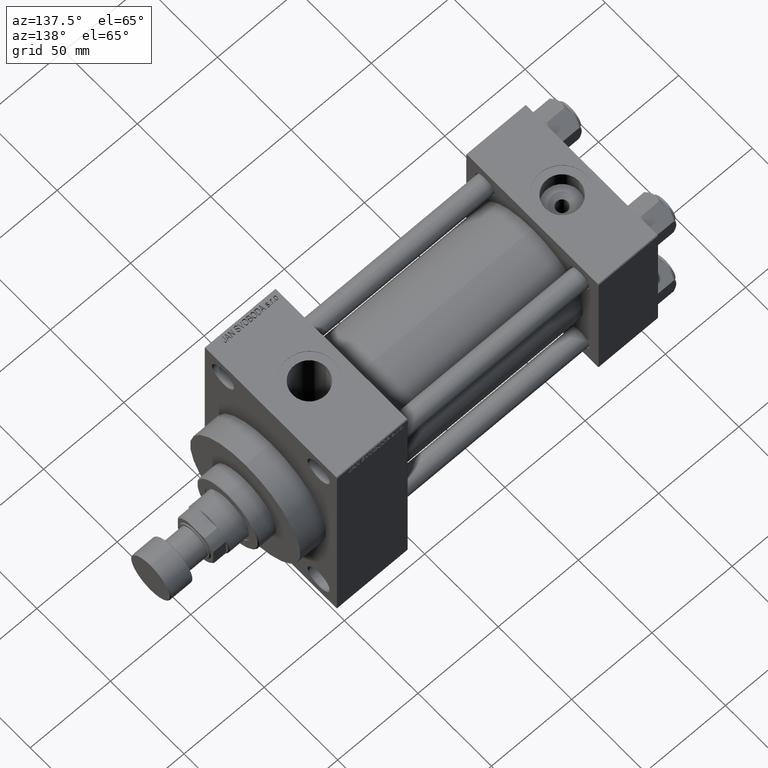
[diagram: clean part render]
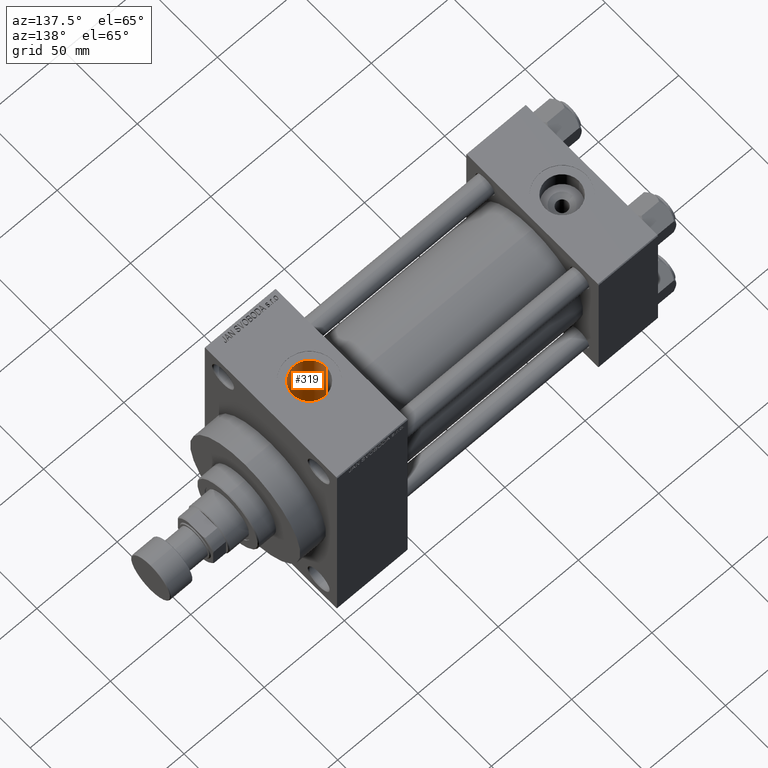
[diagram: same view with one face highlighted and labeled with its STEP entity id]
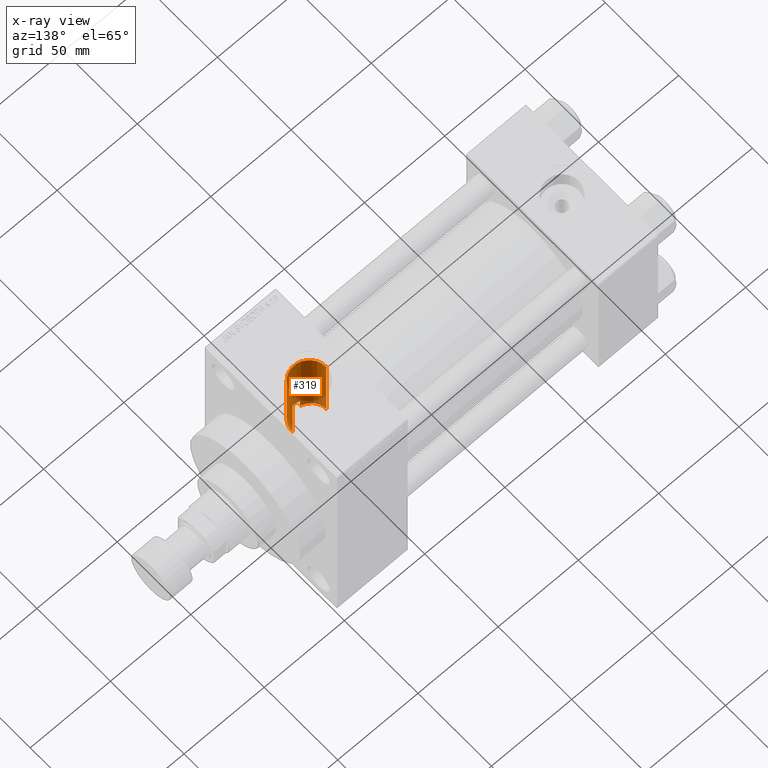
[diagram: x-ray of the same camera — body ghosted, the highlighted face saturated]
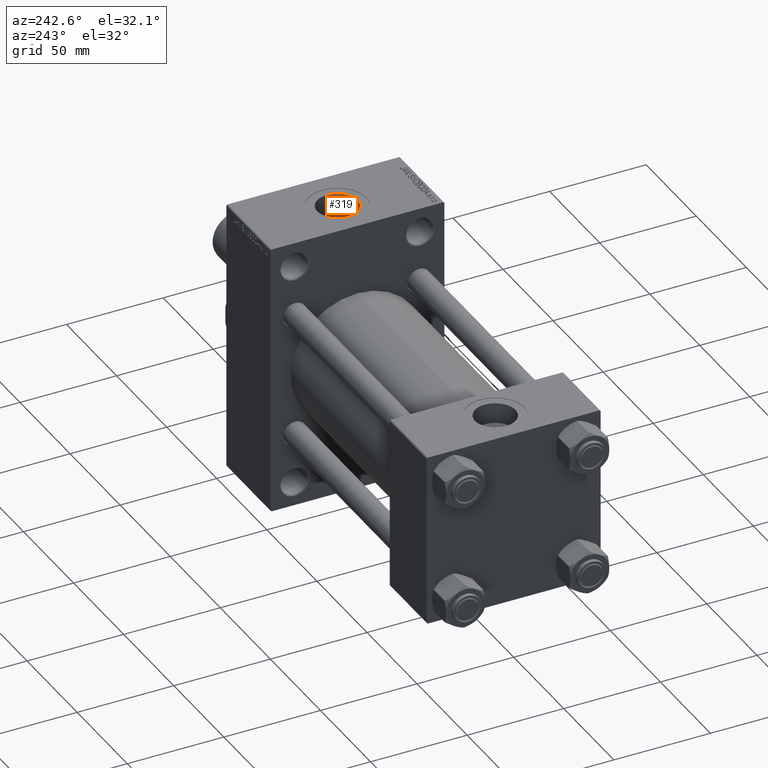
[diagram: same view with one face highlighted and labeled with its STEP entity id]
A machine part, auxiliary view. The second image highlights one B-rep face of the part: STEP entity #319.
The next image is the same camera in x-ray: the body ghosted, the highlighted face saturated — about 12% of this face is hidden behind the body in this view.
A second angle (auxiliary view) of the same face is appended — the face is thin or edge-on in the first view.
In plain terms, the highlighted cylindrical surface (edge-blend (fillet) strip) has radius 10.48 mm, axis along (0, 0, -1).
Its self-contained STEP definition (entity closure, byte-faithful):
#319 = ADVANCED_FACE ( 'NONE', ( #15763 ), #41514, .F. ) ;
#2001 = CARTESIAN_POINT ( 'NONE',  ( 165.5200000000000102, 0.000000000000000000, 70.79999999999998295 ) ) ;
#2548 = CARTESIAN_POINT ( 'NONE',  ( 174.3547903624770470, -10.35843936797068565, 28.15511119385356409 ) ) ;
#2716 = CARTESIAN_POINT ( 'NONE',  ( 165.5200000000000102, 3.061579607078841377E-15, 25.00000000000000000 ) ) ;
#2830 = CARTESIAN_POINT ( 'NONE',  ( 166.2133645239136399, -3.788497290311538812, 24.71686331191869357 ) ) ;
#5696 = CARTESIAN_POINT ( 'NONE',  ( 184.4977574635254598, -6.188339515081465514, 29.36182159556006965 ) ) ;
#5977 = CARTESIAN_POINT ( 'NONE',  ( 166.9226781161778490, -5.266119555344886294, 24.44410166351154601 ) ) ;
#6050 = CARTESIAN_POINT ( 'NONE',  ( 172.7400000000000375, -9.960060240781677621, 28.29836037653065262 ) ) ;
#6180 = CARTESIAN_POINT ( 'NONE',  ( 186.2826880867323212, -2.065458053724752219, 29.93150493033226667 ) ) ;
#6226 = CARTESIAN_POINT ( 'NONE',  ( 168.2050283705146114, -7.025831027277319230, 23.99580452550002718 ) ) ;
#6416 = CARTESIAN_POINT ( 'NONE',  ( 186.4800000000000182, -0.4140493469419980754, 30.00000000000001066 ) ) ;
#6460 = CARTESIAN_POINT ( 'NONE',  ( 172.7400000000000375, -9.960060240781677621, 22.93026820601974691 ) ) ;
#6646 = CARTESIAN_POINT ( 'NONE',  ( 173.5376865130924386, -10.19514556951082973, 28.21465150050000048 ) ) ;
#6781 = ORIENTED_EDGE ( 'NONE', *, *, #15139, .T. ) ;
#7790 = CARTESIAN_POINT ( 'NONE',  ( 176.0000000000000000, 0.000000000000000000, 93.79999999999999716 ) ) ;
#8507 = DIRECTION ( 'NONE',  ( -1.000000000000000000, 0.000000000000000000, 0.000000000000000000 ) ) ;
#8768 = EDGE_CURVE ( 'NONE', #21041, #12306, #38078, .T. ) ;
#9324 = CARTESIAN_POINT ( 'NONE',  ( 186.3561768723853902, -1.659168348792958048, 29.95693324364475529 ) ) ;
#9561 = CARTESIAN_POINT ( 'NONE',  ( 173.1356366639054727, -10.08955499213375973, 28.25278262901559145 ) ) ;
#9739 = DIRECTION ( 'NONE',  ( 0.000000000000000000, 0.000000000000000000, -1.000000000000000000 ) ) ;
#9985 = EDGE_CURVE ( 'NONE', #13677, #10006, #26628, .T. ) ;
#10006 = VERTEX_POINT ( 'NONE', #30235 ) ;
#10206 = DIRECTION ( 'NONE',  ( -0.000000000000000000, -0.000000000000000000, -1.000000000000000000 ) ) ;
#10269 = CARTESIAN_POINT ( 'NONE',  ( 180.4065122839482171, -9.517374506241283783, 28.45078537450225298 ) ) ;
#11651 = CARTESIAN_POINT ( 'NONE',  ( 172.7400000000000375, -9.960060240781677621, 93.79999999999999716 ) ) ;
#12306 = VERTEX_POINT ( 'NONE', #2716 ) ;
#12931 = B_SPLINE_CURVE_WITH_KNOTS ( 'NONE', 3,
 ( #13430, #6416, #38707, #9324, #6180, #31493, #21364, #13659, #20896, #46428, #5696, #43276, #28114, #17521, #28582, #24515, #46899, #42562, #10269, #43041, #16811, #24985, #32204, #13900, #39663, #13184, #2548, #6646, #9561, #24277 ),
 .UNSPECIFIED., .F., .F.,
 ( 4, 2, 2, 2, 2, 2, 2, 2, 2, 2, 2, 2, 2, 2, 4 ),
 ( 0.01983178583558414809, 0.02107005794959062803, 0.02230833006359710449, 0.02354660217760358443, 0.02478487429161006089, 0.02726141851962305199, 0.02849969063362954580, 0.02973796274763603961, 0.03097623486164253342, 0.03221450697564902377, 0.03345277908965552105, 0.03469105120366201833, 0.03716759543167500596, 0.03840586754568153793, 0.03964413965968807685 ),
 .UNSPECIFIED. ) ;
#13184 = CARTESIAN_POINT ( 'NONE',  ( 174.7699339040235316, -10.41578934976506154, 28.13383227326703206 ) ) ;
#13430 = CARTESIAN_POINT ( 'NONE',  ( 186.4799999999999898, 3.673940397618731677E-15, 30.00000000000000000 ) ) ;
#13659 = CARTESIAN_POINT ( 'NONE',  ( 185.6812555715534074, -4.034166111592116799, 29.73008374493930717 ) ) ;
#13677 = VERTEX_POINT ( 'NONE', #40240 ) ;
#13794 = ORIENTED_EDGE ( 'NONE', *, *, #8768, .T. ) ;
#13836 = CARTESIAN_POINT ( 'NONE',  ( 176.0000000000000000, 0.000000000000000000, 70.79999999999998295 ) ) ;
#13900 = CARTESIAN_POINT ( 'NONE',  ( 176.8323486893806376, -10.48013219117956574, 28.11025684355167442 ) ) ;
#14432 = ORIENTED_EDGE ( 'NONE', *, *, #18945, .F. ) ;
#15139 = EDGE_CURVE ( 'NONE', #10006, #26878, #12931, .T. ) ;
#15763 = FACE_OUTER_BOUND ( 'NONE', #28244, .T. ) ;
#16242 = DIRECTION ( 'NONE',  ( 0.000000000000000000, 0.000000000000000000, -1.000000000000000000 ) ) ;
#16811 = CARTESIAN_POINT ( 'NONE',  ( 179.2647576281307806, -9.966984633129872151, 28.29617465522276376 ) ) ;
#16857 = CARTESIAN_POINT ( 'NONE',  ( 169.3891897638273747, -8.150065112751528673, 23.63667431967813215 ) ) ;
#17333 = CARTESIAN_POINT ( 'NONE',  ( 170.2686167523512211, -8.790768987372242549, 23.40594614296280795 ) ) ;
#17521 = CARTESIAN_POINT ( 'NONE',  ( 182.8130789427704599, -7.973576581528542206, 28.92237366509942831 ) ) ;
#18945 = EDGE_CURVE ( 'NONE', #23163, #12306, #20596, .T. ) ;
#19404 = CARTESIAN_POINT ( 'NONE',  ( 186.4799999999999898, 1.283429845506424503E-15, 93.79999999999999716 ) ) ;
#20455 = CARTESIAN_POINT ( 'NONE',  ( 165.7506109030364030, -2.203904040410066933, 24.90413656399008246 ) ) ;
#20596 = LINE ( 'NONE', #42503, #29663 ) ;
#20700 = CARTESIAN_POINT ( 'NONE',  ( 165.9569663818569154, -3.007160148706866654, 24.81987104649664033 ) ) ;
#20896 = CARTESIAN_POINT ( 'NONE',  ( 185.5132943898857718, -4.415432476193853262, 29.67559266697258025 ) ) ;
#20941 = CARTESIAN_POINT ( 'NONE',  ( 167.2133851667944100, -5.737667069548102461, 24.33689057242902365 ) ) ;
#21041 = VERTEX_POINT ( 'NONE', #29963 ) ;
#21078 = EDGE_CURVE ( 'NONE', #21041, #26878, #34299, .T. ) ;
#21364 = CARTESIAN_POINT ( 'NONE',  ( 185.9688766884320046, -3.259248874892651582, 29.82498403132067111 ) ) ;
#23163 = VERTEX_POINT ( 'NONE', #2001 ) ;
#24277 = CARTESIAN_POINT ( 'NONE',  ( 172.7400000000000375, -9.960060240781677621, 28.29836037653065262 ) ) ;
#24319 = CARTESIAN_POINT ( 'NONE',  ( 165.5200000000000671, -0.5526487399564684599, 25.00000000000001066 ) ) ;
#24515 = CARTESIAN_POINT ( 'NONE',  ( 181.8407164529724298, -8.711045480795153395, 28.70853818005239333 ) ) ;
#24798 = CARTESIAN_POINT ( 'NONE',  ( 165.6952564760870530, -1.928778934517580312, 24.92700825772722695 ) ) ;
#24923 = DIRECTION ( 'NONE',  ( 1.000000000000000000, 0.000000000000000000, 0.000000000000000000 ) ) ;
#24985 = CARTESIAN_POINT ( 'NONE',  ( 178.4739236950474321, -10.19211099814792121, 28.21586709986688390 ) ) ;
#26374 = VECTOR ( 'NONE', #45167, 1000.000000000000000 ) ;
#26628 = LINE ( 'NONE', #19404, #26374 ) ;
#26762 = AXIS2_PLACEMENT_3D ( 'NONE', #7790, #16242, #8507 ) ;
#26878 = VERTEX_POINT ( 'NONE', #6050 ) ;
#28114 = CARTESIAN_POINT ( 'NONE',  ( 183.4108071772772348, -7.421314247701534583, 29.06898203862667174 ) ) ;
#28244 = EDGE_LOOP ( 'NONE', ( #35095, #41280, #6781, #34959, #13794, #14432 ) ) ;
#28582 = CARTESIAN_POINT ( 'NONE',  ( 182.4991569451228486, -8.231478667600761412, 28.84970080865383224 ) ) ;
#29663 = VECTOR ( 'NONE', #9739, 1000.000000000000000 ) ;
#29963 = CARTESIAN_POINT ( 'NONE',  ( 172.7400000000000375, -9.960060240781677621, 22.93026820601974691 ) ) ;
#30235 = CARTESIAN_POINT ( 'NONE',  ( 186.4799999999999898, 3.673940397618731677E-15, 30.00000000000000000 ) ) ;
#31493 = CARTESIAN_POINT ( 'NONE',  ( 186.0890390176183473, -2.865498728266685724, 29.86553233084091019 ) ) ;
#31535 = CARTESIAN_POINT ( 'NONE',  ( 166.4236355937511576, -4.292206019337012179, 24.63377942571623791 ) ) ;
#31774 = CARTESIAN_POINT ( 'NONE',  ( 170.7309451898282759, -9.075553538226470707, 23.29606161660610653 ) ) ;
#32204 = CARTESIAN_POINT ( 'NONE',  ( 178.0676511321231885, -10.28246626870990710, 28.18289933756998877 ) ) ;
#32248 = CARTESIAN_POINT ( 'NONE',  ( 171.7027284824027618, -9.574030923381062763, 23.09567255457320911 ) ) ;
#32414 = CIRCLE ( 'NONE', #37019, 10.47999999999998977 ) ;
#33550 = VECTOR ( 'NONE', #37185, 1000.000000000000000 ) ;
#34299 = LINE ( 'NONE', #11651, #33550 ) ;
#34959 = ORIENTED_EDGE ( 'NONE', *, *, #21078, .F. ) ;
#35095 = ORIENTED_EDGE ( 'NONE', *, *, #40577, .F. ) ;
#37019 = AXIS2_PLACEMENT_3D ( 'NONE', #13836, #10206, #24923 ) ;
#37185 = DIRECTION ( 'NONE',  ( -0.000000000000000000, -0.000000000000000000, 1.000000000000000000 ) ) ;
#38078 = B_SPLINE_CURVE_WITH_KNOTS ( 'NONE', 3,
 ( #6460, #46704, #32248, #31774, #17333, #16857, #46472, #6226, #39233, #20941, #5977, #31535, #2830, #20700, #38990, #20455, #24798, #46938, #24319, #42604 ),
 .UNSPECIFIED., .F., .F.,
 ( 4, 2, 2, 2, 2, 2, 2, 2, 2, 4 ),
 ( 0.01988964932192574531, 0.02154756030224158278, 0.02320547128255741678, 0.02486338226287325426, 0.02652129324318909173, 0.02817920422350492921, 0.02983711520382076321, 0.03066607069397868021, 0.03149502618413659721, 0.03315293716445243122 ),
 .UNSPECIFIED. ) ;
#38707 = CARTESIAN_POINT ( 'NONE',  ( 186.4550640607019716, -0.8335913317594021432, 29.99126230196789322 ) ) ;
#38990 = CARTESIAN_POINT ( 'NONE',  ( 165.8813829677837361, -2.742400269040764726, 24.85060264423317022 ) ) ;
#39233 = CARTESIAN_POINT ( 'NONE',  ( 167.8536174240124694, -6.615275848649980084, 24.11313317637569043 ) ) ;
#39663 = CARTESIAN_POINT ( 'NONE',  ( 176.0079132330771472, -10.51264281222108288, 28.09784841831593738 ) ) ;
#40240 = CARTESIAN_POINT ( 'NONE',  ( 186.4799999999999898, 1.283429845506424108E-15, 70.79999999999998295 ) ) ;
#40577 = EDGE_CURVE ( 'NONE', #13677, #23163, #32414, .T. ) ;
#41280 = ORIENTED_EDGE ( 'NONE', *, *, #9985, .T. ) ;
#41514 = CYLINDRICAL_SURFACE ( 'NONE', #26762, 10.47999999999998977 ) ;
#42503 = CARTESIAN_POINT ( 'NONE',  ( 165.5200000000000102, 0.000000000000000000, 93.79999999999999716 ) ) ;
#42562 = CARTESIAN_POINT ( 'NONE',  ( 180.7754301067500933, -9.337894368229028075, 28.51050477243453329 ) ) ;
#42604 = CARTESIAN_POINT ( 'NONE',  ( 165.5200000000000102, 3.061579607078841377E-15, 25.00000000000000000 ) ) ;
#43041 = CARTESIAN_POINT ( 'NONE',  ( 179.6511764337022043, -9.831921411942637690, 28.34362233849842738 ) ) ;
#43276 = CARTESIAN_POINT ( 'NONE',  ( 183.6953313842686271, -7.126116182886357286, 29.14312091195552767 ) ) ;
#45167 = DIRECTION ( 'NONE',  ( 0.000000000000000000, 0.000000000000000000, -1.000000000000000000 ) ) ;
#46428 = CARTESIAN_POINT ( 'NONE',  ( 184.9516850616486465, -5.511024492678202158, 29.49874548845620481 ) ) ;
#46472 = CARTESIAN_POINT ( 'NONE',  ( 168.9710119791482441, -7.792124981740089495, 23.75802442794438463 ) ) ;
#46704 = CARTESIAN_POINT ( 'NONE',  ( 172.2166163324468471, -9.788752968036757096, 23.00467774806669397 ) ) ;
#46899 = CARTESIAN_POINT ( 'NONE',  ( 181.4955340743380248, -8.933090684329149767, 28.63992046840856176 ) ) ;
#46938 = CARTESIAN_POINT ( 'NONE',  ( 165.5634374036090719, -1.103933992171569844, 24.98169420149659103 ) ) ;